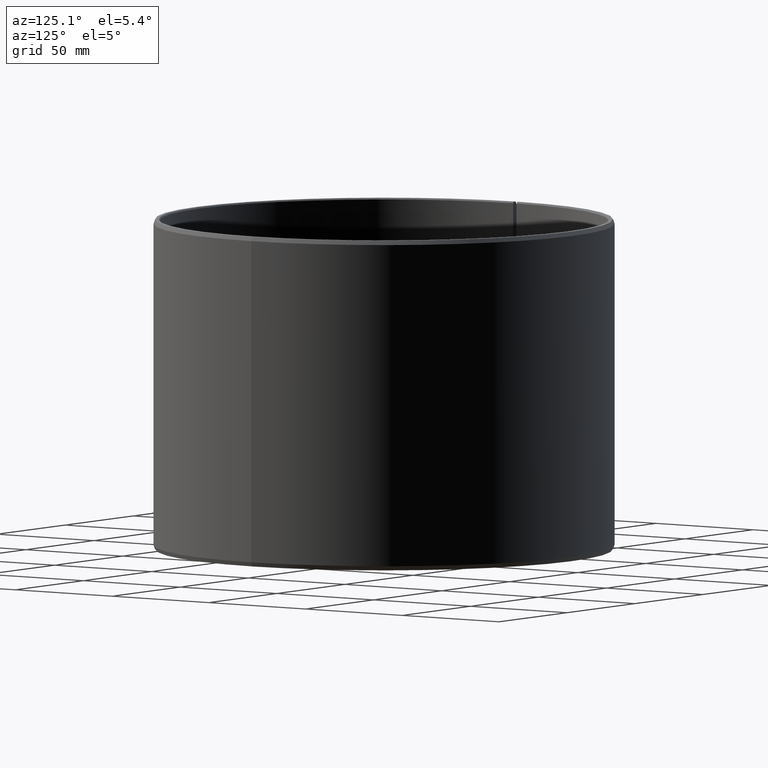
[diagram: clean part render]
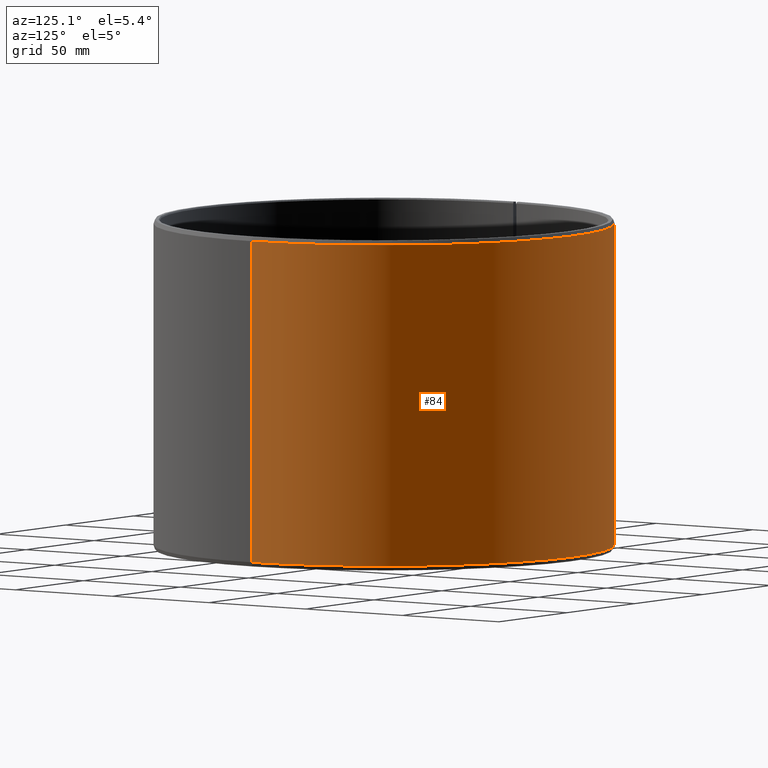
[diagram: same view with one face highlighted and labeled with its STEP entity id]
A machine part, auxiliary view. The second image highlights one B-rep face of the part: STEP entity #84.
In plain terms, the highlighted cylindrical surface (partial cylindrical patch) has radius 97.5 mm, axis along (0, -0, 1).
Its self-contained STEP definition (entity closure, byte-faithful):
#84=ADVANCED_FACE('',(#110),#111,.T.);
#110=FACE_OUTER_BOUND('',#142,.T.);
#111=CYLINDRICAL_SURFACE('',#143,97.5);
#142=EDGE_LOOP('',(#221,#222,#223,#224));
#143=AXIS2_PLACEMENT_3D('',#225,#226,#227);
#221=ORIENTED_EDGE('',*,*,#291,.T.);
#222=ORIENTED_EDGE('',*,*,#307,.T.);
#223=ORIENTED_EDGE('',*,*,#308,.T.);
#224=ORIENTED_EDGE('',*,*,#309,.F.);
#225=CARTESIAN_POINT('',(3.87628124059588E-014,-4.36093420968868E-014,70.0));
#226=DIRECTION('',(5.48707263966375E-016,-6.09939603923743E-016,1.0));
#227=DIRECTION('',(-1.0,1.89882151931499E-015,5.48707263966376E-016));
#291=EDGE_CURVE('',#332,#339,#340,.T.);
#307=EDGE_CURVE('',#339,#363,#365,.T.);
#308=EDGE_CURVE('',#363,#366,#367,.T.);
#309=EDGE_CURVE('',#332,#366,#368,.T.);
#332=VERTEX_POINT('',#398);
#339=VERTEX_POINT('',#407);
#340=LINE('',#408,#409);
#363=VERTEX_POINT('',#440);
#365=CIRCLE('',#443,97.5);
#366=VERTEX_POINT('',#444);
#367=LINE('',#445,#446);
#368=CIRCLE('',#447,97.5);
#398=CARTESIAN_POINT('',(97.5000000000001,-2.82282627509384E-013,138.2));
#407=CARTESIAN_POINT('',(97.5,-1.98877128126739E-013,1.79999999999995));
#408=CARTESIAN_POINT('',(97.5,-2.40684746521784E-013,70.0));
#409=VECTOR('',#485,1.0);
#440=CARTESIAN_POINT('',(-97.4851502777482,1.70160962763533,1.80000000000005));
#443=AXIS2_PLACEMENT_3D('',#513,#514,#515);
#444=CARTESIAN_POINT('',(-97.4851502777481,1.70160962763525,138.2));
#445=CARTESIAN_POINT('',(-97.4851502777482,1.70160962763533,1.80000000000005));
#446=VECTOR('',#516,10.0);
#447=AXIS2_PLACEMENT_3D('',#517,#518,#519);
#485=DIRECTION('',(-5.48707263966375E-016,6.09939603923743E-016,-1.0));
#513=CARTESIAN_POINT('',(1.34097700345211E-015,-1.74661459587933E-015,1.8));
#514=DIRECTION('',(5.48707263966375E-016,-6.09939603923743E-016,1.0));
#515=DIRECTION('',(-1.0,1.89882151931499E-015,5.48707263966376E-016));
#516=DIRECTION('',(8.09062699560228E-016,-6.18368096466119E-016,1.0));
#517=CARTESIAN_POINT('',(7.61846478084656E-014,-8.54720695978942E-014,138.2));
#518=DIRECTION('',(5.48707263966375E-016,-6.09939603923743E-016,1.0));
#519=DIRECTION('',(-1.0,1.89882151931499E-015,5.48707263966376E-016));